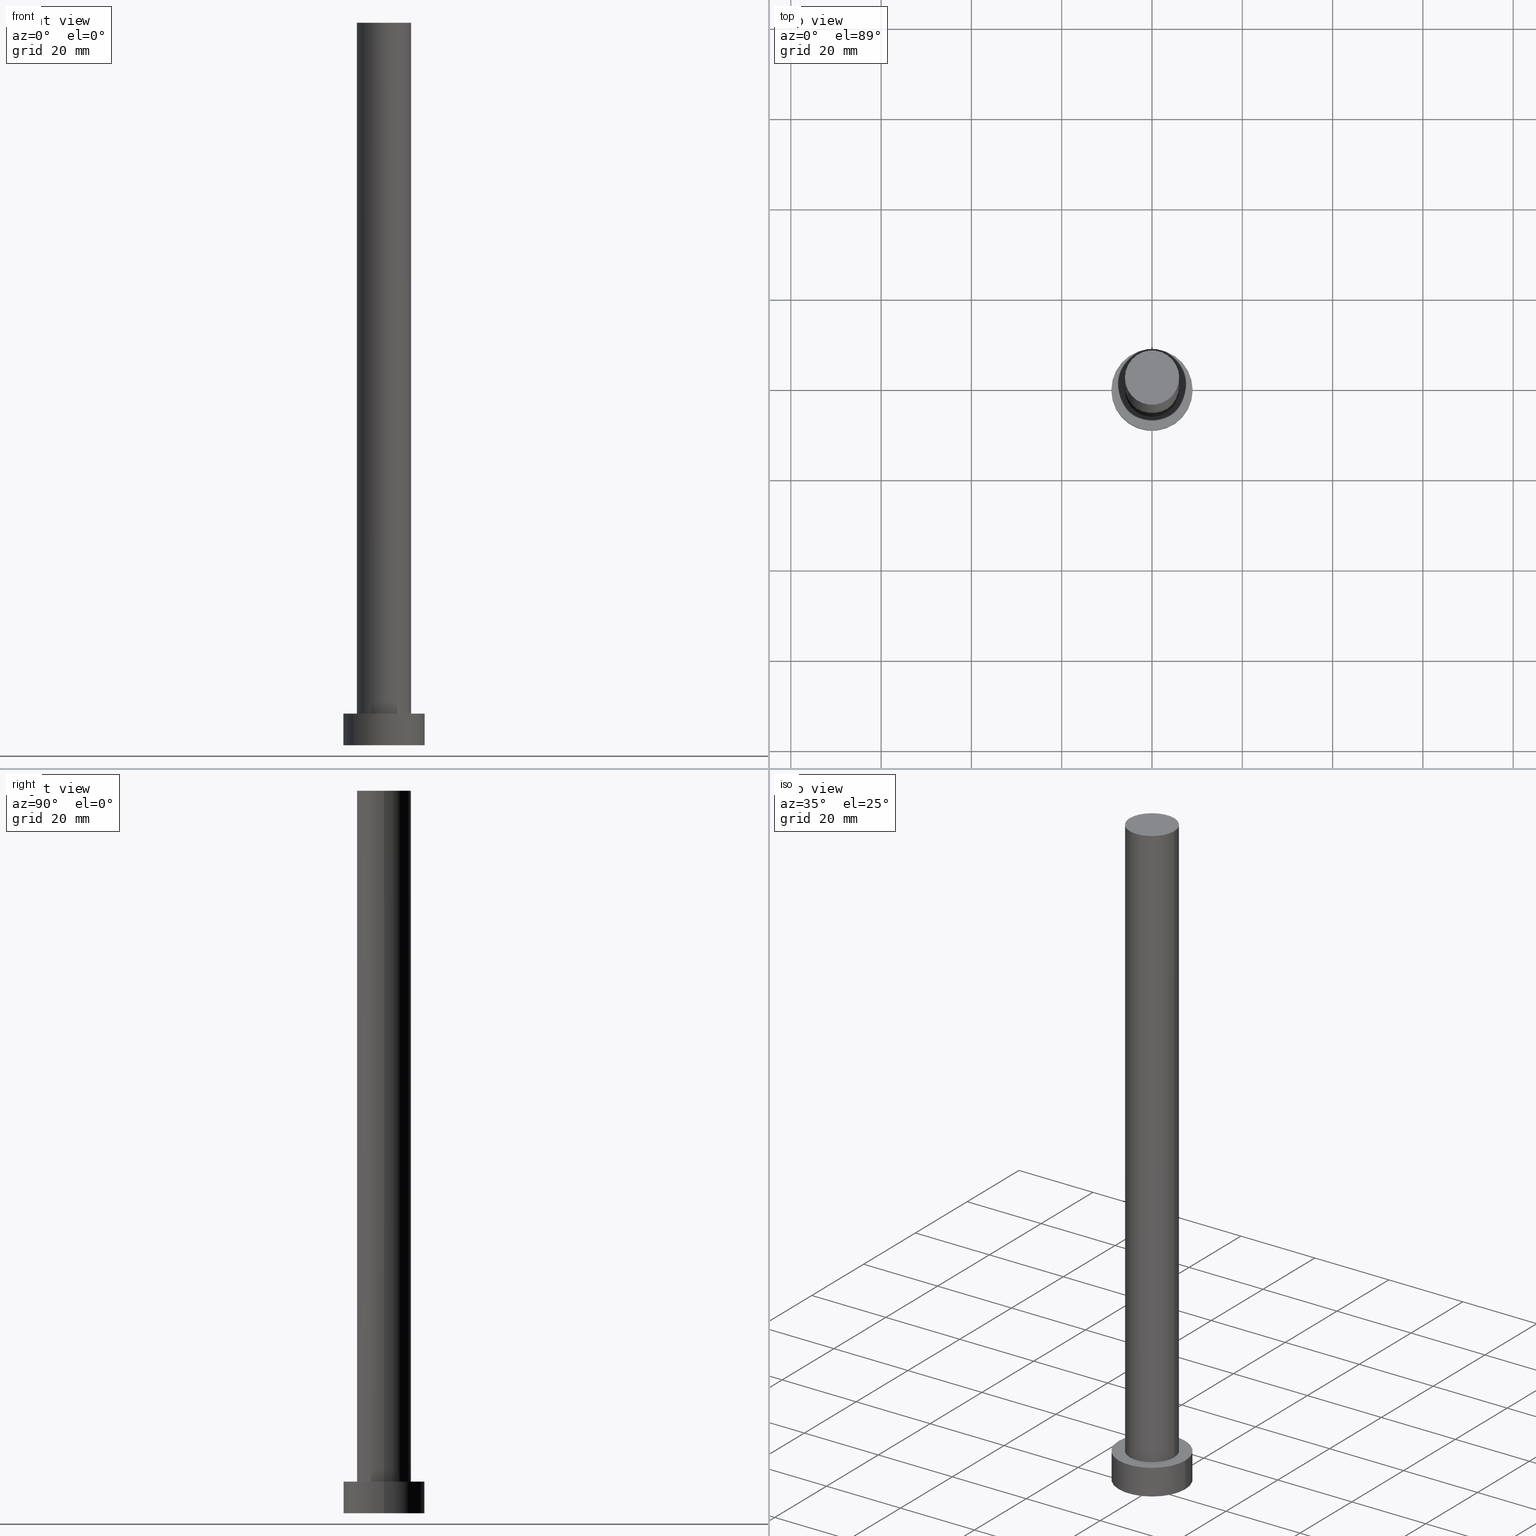
[diagram: canonical four-view strip — front | top / right | iso, engineering-drawing reading convention]
A machine part, canonical four-view strip (front | top / right | iso — engineering-drawing reading convention). The complete STEP part file that produces these views, byte-faithful:
ISO-10303-21;
HEADER;
FILE_DESCRIPTION (( 'STEP AP203' ),
    '1' );
FILE_NAME ('76f1.STEP',
    '2023-02-13T09:18:34',
    ( '' ),
    ( '' ),
    'SwSTEP 2.0',
    'SolidWorks 2019',
    '' );
FILE_SCHEMA (( 'CONFIG_CONTROL_DESIGN' ));
ENDSEC;

DATA;
#1 = PERSON_AND_ORGANIZATION ( #22, #38 ) ;
#2 = APPROVAL ( #224, 'NEUR�EN�' ) ;
#3 = AXIS2_PLACEMENT_3D ( 'NONE', #40, #112, #200 ) ;
#4 = EDGE_CURVE ( 'NONE', #146, #243, #5, .T. ) ;
#5 = CIRCLE ( 'NONE', #198, 9.000000000000000000 ) ;
#6 = FACE_BOUND ( 'NONE', #249, .T. ) ;
#7 = DIRECTION ( 'NONE',  ( 0.000000000000000000, 0.000000000000000000, 1.000000000000000000 ) ) ;
#8 = CC_DESIGN_DATE_AND_TIME_ASSIGNMENT ( #155, #209, ( #113 ) ) ;
#9 = CARTESIAN_POINT ( 'NONE',  ( 0.000000000000000000, 0.000000000000000000, 7.000000000000000000 ) ) ;
#10 = COORDINATED_UNIVERSAL_TIME_OFFSET ( 1, 0, .AHEAD. ) ;
#11 = CARTESIAN_POINT ( 'NONE',  ( 9.000000000000000000, 1.102182119232617714E-15, 7.000000000000000000 ) ) ;
#12 = DIRECTION ( 'NONE',  ( -0.000000000000000000, -0.000000000000000000, -1.000000000000000000 ) ) ;
#13 = DIRECTION ( 'NONE',  ( 1.000000000000000000, 0.000000000000000000, 0.000000000000000000 ) ) ;
#14 = DIRECTION ( 'NONE',  ( 1.000000000000000000, 0.000000000000000000, 0.000000000000000000 ) ) ;
#15 = CARTESIAN_POINT ( 'NONE',  ( -6.000000000000000888, 0.000000000000000000, 160.0000000000000000 ) ) ;
#16 = APPROVAL_DATE_TIME ( #214, #238 ) ;
#17 = ORIENTED_EDGE ( 'NONE', *, *, #205, .F. ) ;
#18 = DIRECTION ( 'NONE',  ( 1.000000000000000000, 0.000000000000000000, 0.000000000000000000 ) ) ;
#19 = CARTESIAN_POINT ( 'NONE',  ( 0.000000000000000000, 0.000000000000000000, 0.000000000000000000 ) ) ;
#20 = EDGE_CURVE ( 'NONE', #222, #225, #141, .T. ) ;
#21 = CIRCLE ( 'NONE', #177, 9.000000000000000000 ) ;
#22 = PERSON ( 'NEUR�EN�', 'NEUR�EN�', 'NEUR�EN�', ('NEUR�EN�'), ('NEUR�EN�'), ('NEUR�EN�') ) ;
#23 = CARTESIAN_POINT ( 'NONE',  ( -9.000000000000000000, 0.000000000000000000, 7.000000000000000000 ) ) ;
#24 = LOCAL_TIME ( 10, 18, 33.00000000000000000, #10 ) ;
#25 = CARTESIAN_POINT ( 'NONE',  ( 0.000000000000000000, 0.000000000000000000, 7.000000000000000000 ) ) ;
#26 = DIRECTION ( 'NONE',  ( -0.000000000000000000, -0.000000000000000000, -1.000000000000000000 ) ) ;
#27 = AXIS2_PLACEMENT_3D ( 'NONE', #19, #255, #152 ) ;
#28 = CC_DESIGN_PERSON_AND_ORGANIZATION_ASSIGNMENT ( #147, #211, ( #114 ) ) ;
#29 = CYLINDRICAL_SURFACE ( 'NONE', #93, 6.000000000000000888 ) ;
#30 = PERSON_AND_ORGANIZATION ( #22, #38 ) ;
#31 = DIRECTION ( 'NONE',  ( 0.000000000000000000, 0.000000000000000000, 1.000000000000000000 ) ) ;
#32 = APPLICATION_PROTOCOL_DEFINITION ( 'international standard', 'config_control_design', 1994, #181 ) ;
#33 = ORIENTED_EDGE ( 'NONE', *, *, #4, .F. ) ;
#34 = ORIENTED_EDGE ( 'NONE', *, *, #219, .T. ) ;
#35 = CC_DESIGN_PERSON_AND_ORGANIZATION_ASSIGNMENT ( #43, #116, ( #229 ) ) ;
#36 = EDGE_LOOP ( 'NONE', ( #230, #246, #109, #17 ) ) ;
#37 = CARTESIAN_POINT ( 'NONE',  ( 9.000000000000000000, 1.102182119232617714E-15, 7.000000000000000000 ) ) ;
#38 = ORGANIZATION ( 'NEUR�EN�', 'NEUR�EN�', '' ) ;
#39 = ORIENTED_EDGE ( 'NONE', *, *, #205, .T. ) ;
#40 = CARTESIAN_POINT ( 'NONE',  ( 0.000000000000000000, 0.000000000000000000, 7.000000000000000000 ) ) ;
#41 = APPROVAL_PERSON_ORGANIZATION ( #251, #238, #194 ) ;
#42 = ADVANCED_FACE ( 'NONE', ( #91 ), #29, .T. ) ;
#43 = PERSON_AND_ORGANIZATION ( #22, #38 ) ;
#44 = ORIENTED_EDGE ( 'NONE', *, *, #204, .T. ) ;
#45 = APPROVAL ( #77, 'NEUR�EN�' ) ;
#46 = LINE ( 'NONE', #23, #125 ) ;
#47 = APPROVAL_ROLE ( '' ) ;
#48 = CARTESIAN_POINT ( 'NONE',  ( 0.000000000000000000, 0.000000000000000000, 160.0000000000000000 ) ) ;
#49 = PERSON_AND_ORGANIZATION_ROLE ( 'creator' ) ;
#50 = DIRECTION ( 'NONE',  ( -0.000000000000000000, -0.000000000000000000, -1.000000000000000000 ) ) ;
#51 = CARTESIAN_POINT ( 'NONE',  ( 0.000000000000000000, 0.000000000000000000, 160.0000000000000000 ) ) ;
#52 = ADVANCED_FACE ( 'NONE', ( #122 ), #170, .T. ) ;
#53 = MANIFOLD_SOLID_BREP ( 'P�idat vysunut�m3', #245 ) ;
#54 = ORIENTED_EDGE ( 'NONE', *, *, #61, .T. ) ;
#55 = VERTEX_POINT ( 'NONE', #213 ) ;
#56 = CARTESIAN_POINT ( 'NONE',  ( -6.000000000000000888, 0.000000000000000000, 160.0000000000000000 ) ) ;
#57 = SHAPE_DEFINITION_REPRESENTATION ( #138, #178 ) ;
#58 = APPROVAL_PERSON_ORGANIZATION ( #167, #2, #47 ) ;
#59 = ORIENTED_EDGE ( 'NONE', *, *, #96, .T. ) ;
#60 = CARTESIAN_POINT ( 'NONE',  ( 0.000000000000000000, 0.000000000000000000, 7.000000000000000000 ) ) ;
#61 = EDGE_CURVE ( 'NONE', #139, #55, #85, .T. ) ;
#62 = AXIS2_PLACEMENT_3D ( 'NONE', #101, #31, #18 ) ;
#63 = EDGE_LOOP ( 'NONE', ( #206, #70, #54, #98 ) ) ;
#64 = DIRECTION ( 'NONE',  ( 1.000000000000000000, 0.000000000000000000, 0.000000000000000000 ) ) ;
#65 = DATE_AND_TIME ( #242, #24 ) ;
#66 = ORIENTED_EDGE ( 'NONE', *, *, #20, .F. ) ;
#67 = VECTOR ( 'NONE', #12, 1000.000000000000000 ) ;
#68 = DATE_AND_TIME ( #244, #88 ) ;
#69 = CARTESIAN_POINT ( 'NONE',  ( 0.000000000000000000, 0.000000000000000000, 0.000000000000000000 ) ) ;
#70 = ORIENTED_EDGE ( 'NONE', *, *, #92, .T. ) ;
#71 = CARTESIAN_POINT ( 'NONE',  ( 9.000000000000000000, 1.102182119232617714E-15, 0.000000000000000000 ) ) ;
#72 = DIRECTION ( 'NONE',  ( -1.000000000000000000, 0.000000000000000000, 0.000000000000000000 ) ) ;
#73 = CIRCLE ( 'NONE', #154, 6.000000000000000888 ) ;
#74 = CARTESIAN_POINT ( 'NONE',  ( 0.000000000000000000, 0.000000000000000000, 160.0000000000000000 ) ) ;
#75 = CC_DESIGN_SECURITY_CLASSIFICATION ( #113, ( #166 ) ) ;
#76 = CARTESIAN_POINT ( 'NONE',  ( -9.000000000000000000, 0.000000000000000000, 0.000000000000000000 ) ) ;
#77 = APPROVAL_STATUS ( 'not_yet_approved' ) ;
#78 = AXIS2_PLACEMENT_3D ( 'NONE', #231, #123, #207 ) ;
#79 = DIRECTION ( 'NONE',  ( -0.000000000000000000, -0.000000000000000000, -1.000000000000000000 ) ) ;
#80 = AXIS2_PLACEMENT_3D ( 'NONE', #190, #188, #14 ) ;
#81 = LOCAL_TIME ( 10, 18, 33.00000000000000000, #175 ) ;
#82 = DIRECTION ( 'NONE',  ( 1.000000000000000000, 0.000000000000000000, -0.000000000000000000 ) ) ;
#83 = COORDINATED_UNIVERSAL_TIME_OFFSET ( 1, 0, .AHEAD. ) ;
#84 = EDGE_LOOP ( 'NONE', ( #145, #169, #39, #182 ) ) ;
#85 = CIRCLE ( 'NONE', #62, 6.000000000000000888 ) ;
#86 = APPROVAL_DATE_TIME ( #162, #45 ) ;
#87 = DIRECTION ( 'NONE',  ( 1.000000000000000000, 0.000000000000000000, 0.000000000000000000 ) ) ;
#88 = LOCAL_TIME ( 10, 18, 33.00000000000000000, #83 ) ;
#89 = CC_DESIGN_PERSON_AND_ORGANIZATION_ASSIGNMENT ( #95, #129, ( #113 ) ) ;
#90 = ORIENTED_EDGE ( 'NONE', *, *, #61, .F. ) ;
#91 = FACE_OUTER_BOUND ( 'NONE', #232, .T. ) ;
#92 = EDGE_CURVE ( 'NONE', #225, #139, #252, .T. ) ;
#93 = AXIS2_PLACEMENT_3D ( 'NONE', #48, #50, #72 ) ;
#94 = CARTESIAN_POINT ( 'NONE',  ( 0.000000000000000000, 0.000000000000000000, 160.0000000000000000 ) ) ;
#95 = PERSON_AND_ORGANIZATION ( #22, #38 ) ;
#96 = EDGE_CURVE ( 'NONE', #55, #139, #216, .T. ) ;
#97 = AXIS2_PLACEMENT_3D ( 'NONE', #94, #164, #143 ) ;
#98 = ORIENTED_EDGE ( 'NONE', *, *, #131, .F. ) ;
#99 = PLANE ( 'NONE',  #172 ) ;
#100 = PRODUCT_RELATED_PRODUCT_CATEGORY ( 'detail', '', ( #114 ) ) ;
#101 = CARTESIAN_POINT ( 'NONE',  ( 0.000000000000000000, 0.000000000000000000, 7.000000000000000000 ) ) ;
#102 = PERSON_AND_ORGANIZATION_ROLE ( 'design_supplier' ) ;
#103 = ADVANCED_FACE ( 'NONE', ( #210 ), #233, .T. ) ;
#104 = VERTEX_POINT ( 'NONE', #227 ) ;
#105 = MECHANICAL_CONTEXT ( 'NONE', #181, 'mechanical' ) ;
#106 = CARTESIAN_POINT ( 'NONE',  ( 6.000000000000000888, 7.347880794884120722E-16, 160.0000000000000000 ) ) ;
#107 = DIRECTION ( 'NONE',  ( 0.000000000000000000, 0.000000000000000000, 1.000000000000000000 ) ) ;
#108 = APPROVAL_STATUS ( 'not_yet_approved' ) ;
#109 = ORIENTED_EDGE ( 'NONE', *, *, #161, .T. ) ;
#110 = LINE ( 'NONE', #56, #253 ) ;
#111 = EDGE_CURVE ( 'NONE', #225, #222, #73, .T. ) ;
#112 = DIRECTION ( 'NONE',  ( -0.000000000000000000, -0.000000000000000000, -1.000000000000000000 ) ) ;
#113 = SECURITY_CLASSIFICATION ( '', '', #187 ) ;
#114 = PRODUCT ( '76f1', '76f1', '', ( #105 ) ) ;
#115 = DATE_TIME_ROLE ( 'creation_date' ) ;
#116 = PERSON_AND_ORGANIZATION_ROLE ( 'creator' ) ;
#117 = EDGE_LOOP ( 'NONE', ( #202, #134 ) ) ;
#118 = CIRCLE ( 'NONE', #217, 9.000000000000000000 ) ;
#119 = DIRECTION ( 'NONE',  ( 0.000000000000000000, 0.000000000000000000, 1.000000000000000000 ) ) ;
#120 = CALENDAR_DATE ( 2023, 13, 2 ) ;
#121 = CARTESIAN_POINT ( 'NONE',  ( 0.000000000000000000, 0.000000000000000000, 160.0000000000000000 ) ) ;
#122 = FACE_OUTER_BOUND ( 'NONE', #117, .T. ) ;
#123 = DIRECTION ( 'NONE',  ( 0.000000000000000000, 0.000000000000000000, 1.000000000000000000 ) ) ;
#124 = AXIS2_PLACEMENT_3D ( 'NONE', #51, #107, #13 ) ;
#125 = VECTOR ( 'NONE', #158, 1000.000000000000000 ) ;
#126 = DIRECTION ( 'NONE',  ( 1.000000000000000000, 0.000000000000000000, 0.000000000000000000 ) ) ;
#127 = ORIENTED_EDGE ( 'NONE', *, *, #161, .F. ) ;
#128 = DIRECTION ( 'NONE',  ( -0.000000000000000000, -0.000000000000000000, -1.000000000000000000 ) ) ;
#129 = PERSON_AND_ORGANIZATION_ROLE ( 'classification_officer' ) ;
#130 = APPROVAL_PERSON_ORGANIZATION ( #1, #45, #156 ) ;
#131 = EDGE_CURVE ( 'NONE', #222, #55, #110, .T. ) ;
#132 =( NAMED_UNIT ( * ) PLANE_ANGLE_UNIT ( ) SI_UNIT ( $, .RADIAN. ) );
#133 = CC_DESIGN_DATE_AND_TIME_ASSIGNMENT ( #65, #115, ( #229 ) ) ;
#134 = ORIENTED_EDGE ( 'NONE', *, *, #111, .T. ) ;
#135 = CARTESIAN_POINT ( 'NONE',  ( 0.000000000000000000, 0.000000000000000000, 0.000000000000000000 ) ) ;
#136 = CARTESIAN_POINT ( 'NONE',  ( 0.000000000000000000, 0.000000000000000000, 7.000000000000000000 ) ) ;
#137 = ORIENTED_EDGE ( 'NONE', *, *, #131, .T. ) ;
#138 = PRODUCT_DEFINITION_SHAPE ( 'NONE', 'NONE',  #229 ) ;
#139 = VERTEX_POINT ( 'NONE', #193 ) ;
#140 =( LENGTH_UNIT ( ) NAMED_UNIT ( * ) SI_UNIT ( .MILLI., .METRE. ) );
#141 = CIRCLE ( 'NONE', #124, 6.000000000000000888 ) ;
#142 = APPROVAL_DATE_TIME ( #68, #2 ) ;
#143 = DIRECTION ( 'NONE',  ( -1.000000000000000000, 0.000000000000000000, 0.000000000000000000 ) ) ;
#144 = CARTESIAN_POINT ( 'NONE',  ( 6.000000000000000888, 7.347880794884120722E-16, 160.0000000000000000 ) ) ;
#145 = ORIENTED_EDGE ( 'NONE', *, *, #160, .F. ) ;
#146 = VERTEX_POINT ( 'NONE', #76 ) ;
#147 = PERSON_AND_ORGANIZATION ( #22, #38 ) ;
#148 = AXIS2_PLACEMENT_3D ( 'NONE', #74, #119, #150 ) ;
#149 = ADVANCED_FACE ( 'NONE', ( #234 ), #215, .F. ) ;
#150 = DIRECTION ( 'NONE',  ( 1.000000000000000000, 0.000000000000000000, -0.000000000000000000 ) ) ;
#151 = CALENDAR_DATE ( 2023, 13, 2 ) ;
#152 = DIRECTION ( 'NONE',  ( 1.000000000000000000, 0.000000000000000000, -0.000000000000000000 ) ) ;
#153 = DESIGN_CONTEXT ( 'detailed design', #195, 'design' ) ;
#154 = AXIS2_PLACEMENT_3D ( 'NONE', #121, #203, #87 ) ;
#155 = DATE_AND_TIME ( #235, #157 ) ;
#156 = APPROVAL_ROLE ( '' ) ;
#157 = LOCAL_TIME ( 10, 18, 33.00000000000000000, #212 ) ;
#158 = DIRECTION ( 'NONE',  ( -0.000000000000000000, -0.000000000000000000, -1.000000000000000000 ) ) ;
#159 = DIRECTION ( 'NONE',  ( -1.000000000000000000, 0.000000000000000000, 0.000000000000000000 ) ) ;
#160 = EDGE_CURVE ( 'NONE', #191, #243, #173, .T. ) ;
#161 = EDGE_CURVE ( 'NONE', #243, #146, #21, .T. ) ;
#162 = DATE_AND_TIME ( #120, #189 ) ;
#163 = DIRECTION ( 'NONE',  ( 0.000000000000000000, 0.000000000000000000, 1.000000000000000000 ) ) ;
#164 = DIRECTION ( 'NONE',  ( -0.000000000000000000, -0.000000000000000000, -1.000000000000000000 ) ) ;
#165 = DIRECTION ( 'NONE',  ( 1.000000000000000000, 0.000000000000000000, 0.000000000000000000 ) ) ;
#166 = PRODUCT_DEFINITION_FORMATION_WITH_SPECIFIED_SOURCE ( 'LIBOVOLN�', '', #114, .NOT_KNOWN. ) ;
#167 = PERSON_AND_ORGANIZATION ( #22, #38 ) ;
#168 = EDGE_LOOP ( 'NONE', ( #44, #34 ) ) ;
#169 = ORIENTED_EDGE ( 'NONE', *, *, #204, .F. ) ;
#170 = PLANE ( 'NONE',  #148 ) ;
#171 = VECTOR ( 'NONE', #26, 1000.000000000000000 ) ;
#172 = AXIS2_PLACEMENT_3D ( 'NONE', #9, #223, #82 ) ;
#173 = LINE ( 'NONE', #37, #171 ) ;
#174 = UNCERTAINTY_MEASURE_WITH_UNIT (LENGTH_MEASURE( 1.000000000000000082E-05 ), #140, 'distance_accuracy_value', 'NONE');
#175 = COORDINATED_UNIVERSAL_TIME_OFFSET ( 1, 0, .AHEAD. ) ;
#176 = APPLICATION_PROTOCOL_DEFINITION ( 'international standard', 'config_control_design', 1994, #195 ) ;
#177 = AXIS2_PLACEMENT_3D ( 'NONE', #135, #7, #201 ) ;
#178 = ADVANCED_BREP_SHAPE_REPRESENTATION ( '76f1', ( #53, #78 ), #208 ) ;
#179 = COORDINATED_UNIVERSAL_TIME_OFFSET ( 1, 0, .AHEAD. ) ;
#180 = CYLINDRICAL_SURFACE ( 'NONE', #254, 9.000000000000000000 ) ;
#181 = APPLICATION_CONTEXT ( 'configuration controlled 3d designs of mechanical parts and assemblies' ) ;
#182 = ORIENTED_EDGE ( 'NONE', *, *, #4, .T. ) ;
#183 = ADVANCED_FACE ( 'NONE', ( #184 ), #180, .T. ) ;
#184 = FACE_OUTER_BOUND ( 'NONE', #36, .T. ) ;
#185 = EDGE_LOOP ( 'NONE', ( #33, #127 ) ) ;
#186 = DIRECTION ( 'NONE',  ( 0.000000000000000000, 0.000000000000000000, 1.000000000000000000 ) ) ;
#187 = SECURITY_CLASSIFICATION_LEVEL ( 'unclassified' ) ;
#188 = DIRECTION ( 'NONE',  ( 0.000000000000000000, 0.000000000000000000, 1.000000000000000000 ) ) ;
#189 = LOCAL_TIME ( 10, 18, 33.00000000000000000, #179 ) ;
#190 = CARTESIAN_POINT ( 'NONE',  ( 0.000000000000000000, 0.000000000000000000, 7.000000000000000000 ) ) ;
#191 = VERTEX_POINT ( 'NONE', #11 ) ;
#192 = ADVANCED_FACE ( 'NONE', ( #6, #241 ), #99, .T. ) ;
#193 = CARTESIAN_POINT ( 'NONE',  ( 6.000000000000000888, 7.347880794884120722E-16, 7.000000000000000000 ) ) ;
#194 = APPROVAL_ROLE ( '' ) ;
#195 = APPLICATION_CONTEXT ( 'configuration controlled 3d designs of mechanical parts and assemblies' ) ;
#196 = CC_DESIGN_APPROVAL ( #45, ( #229 ) ) ;
#197 = CC_DESIGN_PERSON_AND_ORGANIZATION_ASSIGNMENT ( #226, #49, ( #166 ) ) ;
#198 = AXIS2_PLACEMENT_3D ( 'NONE', #69, #250, #126 ) ;
#199 = CIRCLE ( 'NONE', #248, 9.000000000000000000 ) ;
#200 = DIRECTION ( 'NONE',  ( -1.000000000000000000, 0.000000000000000000, 0.000000000000000000 ) ) ;
#201 = DIRECTION ( 'NONE',  ( 1.000000000000000000, 0.000000000000000000, 0.000000000000000000 ) ) ;
#202 = ORIENTED_EDGE ( 'NONE', *, *, #20, .T. ) ;
#203 = DIRECTION ( 'NONE',  ( 0.000000000000000000, 0.000000000000000000, 1.000000000000000000 ) ) ;
#204 = EDGE_CURVE ( 'NONE', #104, #191, #199, .T. ) ;
#205 = EDGE_CURVE ( 'NONE', #104, #146, #46, .T. ) ;
#206 = ORIENTED_EDGE ( 'NONE', *, *, #111, .F. ) ;
#207 = DIRECTION ( 'NONE',  ( 1.000000000000000000, 0.000000000000000000, 0.000000000000000000 ) ) ;
#208 =( GEOMETRIC_REPRESENTATION_CONTEXT ( 3 ) GLOBAL_UNCERTAINTY_ASSIGNED_CONTEXT ( ( #174 ) ) GLOBAL_UNIT_ASSIGNED_CONTEXT ( ( #140, #132, #228 ) ) REPRESENTATION_CONTEXT ( 'NONE', 'WORKASPACE' ) );
#209 = DATE_TIME_ROLE ( 'classification_date' ) ;
#210 = FACE_OUTER_BOUND ( 'NONE', #63, .T. ) ;
#211 = PERSON_AND_ORGANIZATION_ROLE ( 'design_owner' ) ;
#212 = COORDINATED_UNIVERSAL_TIME_OFFSET ( 1, 0, .AHEAD. ) ;
#213 = CARTESIAN_POINT ( 'NONE',  ( -6.000000000000000888, 0.000000000000000000, 7.000000000000000000 ) ) ;
#214 = DATE_AND_TIME ( #151, #81 ) ;
#215 = PLANE ( 'NONE',  #27 ) ;
#216 = CIRCLE ( 'NONE', #80, 6.000000000000000888 ) ;
#217 = AXIS2_PLACEMENT_3D ( 'NONE', #25, #186, #165 ) ;
#218 = ADVANCED_FACE ( 'NONE', ( #240 ), #221, .T. ) ;
#219 = EDGE_CURVE ( 'NONE', #191, #104, #118, .T. ) ;
#220 = ORIENTED_EDGE ( 'NONE', *, *, #96, .F. ) ;
#221 = CYLINDRICAL_SURFACE ( 'NONE', #3, 9.000000000000000000 ) ;
#222 = VERTEX_POINT ( 'NONE', #15 ) ;
#223 = DIRECTION ( 'NONE',  ( 0.000000000000000000, 0.000000000000000000, 1.000000000000000000 ) ) ;
#224 = APPROVAL_STATUS ( 'not_yet_approved' ) ;
#225 = VERTEX_POINT ( 'NONE', #144 ) ;
#226 = PERSON_AND_ORGANIZATION ( #22, #38 ) ;
#227 = CARTESIAN_POINT ( 'NONE',  ( -9.000000000000000000, 0.000000000000000000, 7.000000000000000000 ) ) ;
#228 =( NAMED_UNIT ( * ) SI_UNIT ( $, .STERADIAN. ) SOLID_ANGLE_UNIT ( ) );
#229 = PRODUCT_DEFINITION ( 'NEZN�M�', '', #166, #153 ) ;
#230 = ORIENTED_EDGE ( 'NONE', *, *, #219, .F. ) ;
#231 = CARTESIAN_POINT ( 'NONE',  ( 0.000000000000000000, 0.000000000000000000, 0.000000000000000000 ) ) ;
#232 = EDGE_LOOP ( 'NONE', ( #239, #66, #137, #59 ) ) ;
#233 = CYLINDRICAL_SURFACE ( 'NONE', #97, 6.000000000000000888 ) ;
#234 = FACE_OUTER_BOUND ( 'NONE', #185, .T. ) ;
#235 = CALENDAR_DATE ( 2023, 13, 2 ) ;
#236 = CC_DESIGN_APPROVAL ( #2, ( #166 ) ) ;
#237 = CC_DESIGN_APPROVAL ( #238, ( #113 ) ) ;
#238 = APPROVAL ( #108, 'NEUR�EN�' ) ;
#239 = ORIENTED_EDGE ( 'NONE', *, *, #92, .F. ) ;
#240 = FACE_OUTER_BOUND ( 'NONE', #84, .T. ) ;
#241 = FACE_OUTER_BOUND ( 'NONE', #168, .T. ) ;
#242 = CALENDAR_DATE ( 2023, 13, 2 ) ;
#243 = VERTEX_POINT ( 'NONE', #71 ) ;
#244 = CALENDAR_DATE ( 2023, 13, 2 ) ;
#245 = CLOSED_SHELL ( 'NONE', ( #103, #183, #218, #192, #149, #42, #52 ) ) ;
#246 = ORIENTED_EDGE ( 'NONE', *, *, #160, .T. ) ;
#247 = CC_DESIGN_PERSON_AND_ORGANIZATION_ASSIGNMENT ( #30, #102, ( #166 ) ) ;
#248 = AXIS2_PLACEMENT_3D ( 'NONE', #60, #163, #64 ) ;
#249 = EDGE_LOOP ( 'NONE', ( #220, #90 ) ) ;
#250 = DIRECTION ( 'NONE',  ( 0.000000000000000000, 0.000000000000000000, 1.000000000000000000 ) ) ;
#251 = PERSON_AND_ORGANIZATION ( #22, #38 ) ;
#252 = LINE ( 'NONE', #106, #67 ) ;
#253 = VECTOR ( 'NONE', #128, 1000.000000000000000 ) ;
#254 = AXIS2_PLACEMENT_3D ( 'NONE', #136, #79, #159 ) ;
#255 = DIRECTION ( 'NONE',  ( 0.000000000000000000, 0.000000000000000000, 1.000000000000000000 ) ) ;
ENDSEC;
END-ISO-10303-21;
